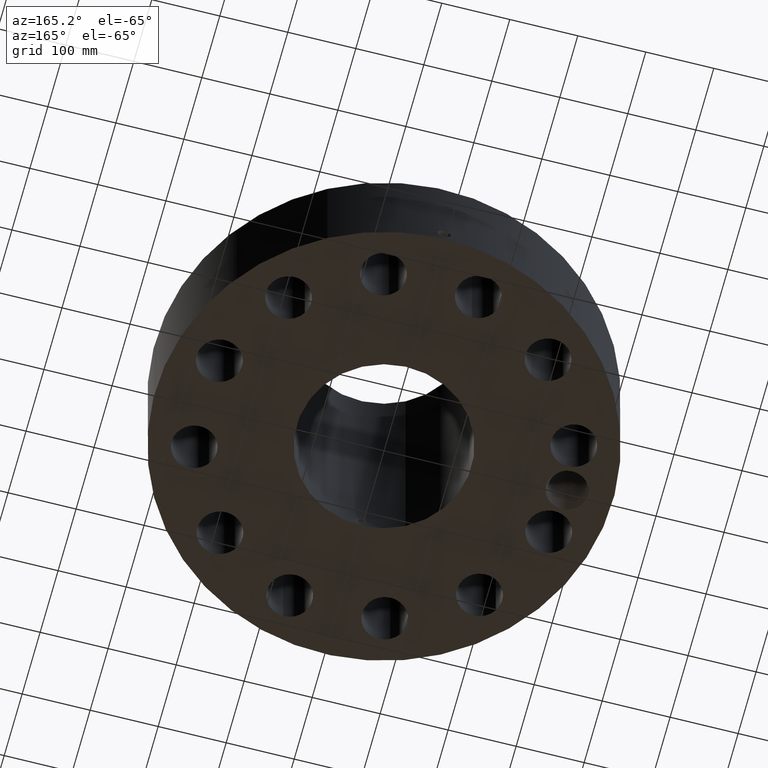
[diagram: clean part render]
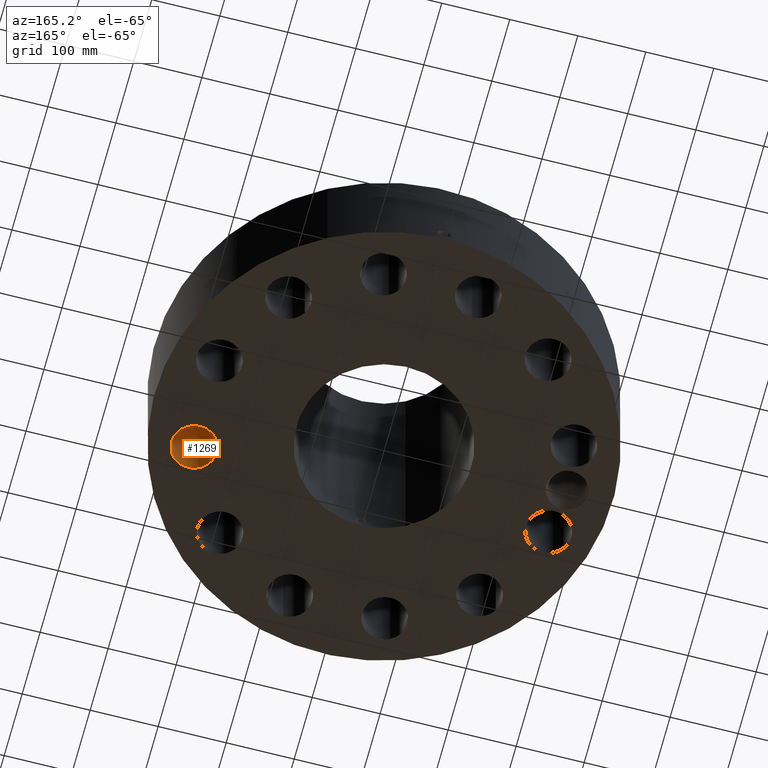
[diagram: same view with one face highlighted and labeled with its STEP entity id]
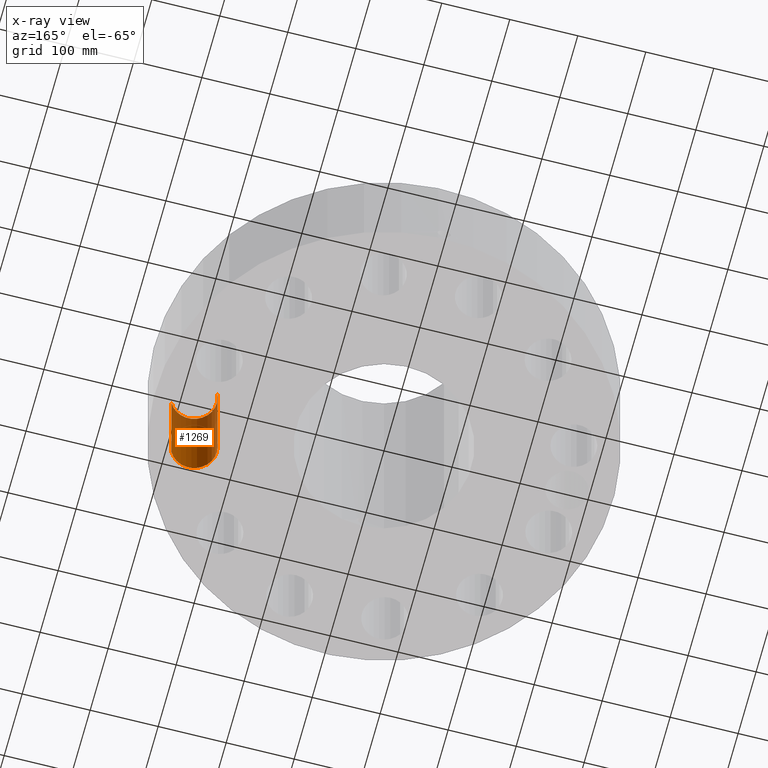
[diagram: x-ray of the same camera — body ghosted, the highlighted face saturated]
A machine part, auxiliary view. The second image highlights one B-rep face of the part: STEP entity #1269.
The next image is the same camera in x-ray: the body ghosted, the highlighted face saturated — about 26% of this face is hidden behind the body in this view.
In plain terms, the highlighted cylindrical surface (edge-blend (fillet) strip) has radius 33.274 mm, axis along (0, -0, -1).
Its self-contained STEP definition (entity closure, byte-faithful):
#239=AXIS2_PLACEMENT_3D('Circle Axis2P3D',#237,#238,$) ;
#652=AXIS2_PLACEMENT_3D('Circle Axis2P3D',#650,#651,$) ;
#1251=AXIS2_PLACEMENT_3D('Cylinder Axis2P3D',#1248,#1249,#1250) ;
#237=CARTESIAN_POINT('Axis2P3D Location',(10.2629619044,-2.74995235423,0.250000000001)) ;
#241=CARTESIAN_POINT('Vertex',(11.4125950604,-3.3779998098,0.250000000001)) ;
#243=CARTESIAN_POINT('Vertex',(9.11332874828,-2.12190489865,0.250000000001)) ;
#645=CARTESIAN_POINT('Vertex',(9.11332874828,-2.12190489865,6.75000000003)) ;
#647=CARTESIAN_POINT('Vertex',(11.4125950604,-3.3779998098,6.75000000003)) ;
#650=CARTESIAN_POINT('Axis2P3D Location',(10.2629619044,-2.74995235423,6.75000000003)) ;
#1248=CARTESIAN_POINT('Axis2P3D Location',(10.2629619044,-2.74995235423,6.74606299215)) ;
#1253=CARTESIAN_POINT('Line Origine',(11.4125950604,-3.3779998098,3.50000000001)) ;
#1258=CARTESIAN_POINT('Line Origine',(9.11332874828,-2.12190489865,3.50000000001)) ;
#238=DIRECTION('Axis2P3D Direction',(0.,0.,-0.0393700787402)) ;
#651=DIRECTION('Axis2P3D Direction',(0.,0.,-0.0393700787402)) ;
#1249=DIRECTION('Axis2P3D Direction',(0.,-0.,-0.0393700787402)) ;
#1250=DIRECTION('Axis2P3D XDirection',(-0.0345504945626,0.0188750212049,0.)) ;
#1254=DIRECTION('Vector Direction',(0.,0.,-0.0393700787402)) ;
#1259=DIRECTION('Vector Direction',(0.,0.,-0.0393700787402)) ;
#1255=VECTOR('Line Direction',#1254,0.0393700787402) ;
#1260=VECTOR('Line Direction',#1259,0.0393700787402) ;
#1264=ORIENTED_EDGE('',*,*,#1257,.F.) ;
#1265=ORIENTED_EDGE('',*,*,#245,.T.) ;
#1266=ORIENTED_EDGE('',*,*,#1262,.T.) ;
#1267=ORIENTED_EDGE('',*,*,#654,.F.) ;
#1269=ADVANCED_FACE('PartBody',(#1268),#1252,.F.) ;
#240=CIRCLE('generated circle',#239,1.31000000001) ;
#653=CIRCLE('generated circle',#652,1.31000000001) ;
#1252=CYLINDRICAL_SURFACE('generated cylinder',#1251,1.31000000001) ;
#245=EDGE_CURVE('',#242,#244,#240,.T.) ;
#654=EDGE_CURVE('',#648,#646,#653,.T.) ;
#1257=EDGE_CURVE('',#242,#648,#1256,.F.) ;
#1262=EDGE_CURVE('',#244,#646,#1261,.F.) ;
#1263=EDGE_LOOP('',(#1264,#1265,#1266,#1267)) ;
#1268=FACE_OUTER_BOUND('',#1263,.T.) ;
#1256=LINE('Line',#1253,#1255) ;
#1261=LINE('Line',#1258,#1260) ;
#242=VERTEX_POINT('',#241) ;
#244=VERTEX_POINT('',#243) ;
#646=VERTEX_POINT('',#645) ;
#648=VERTEX_POINT('',#647) ;